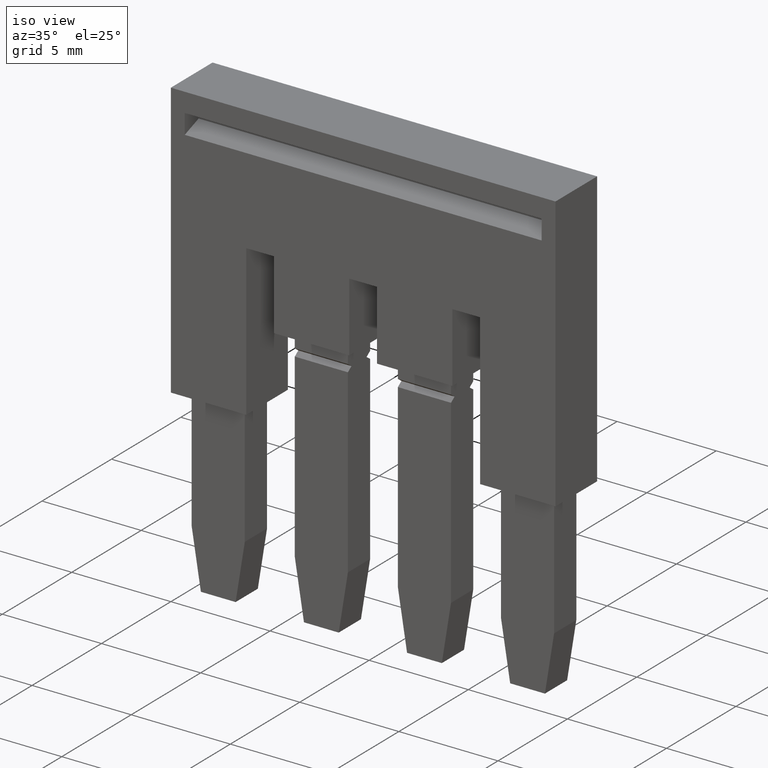
[diagram: clean part render]
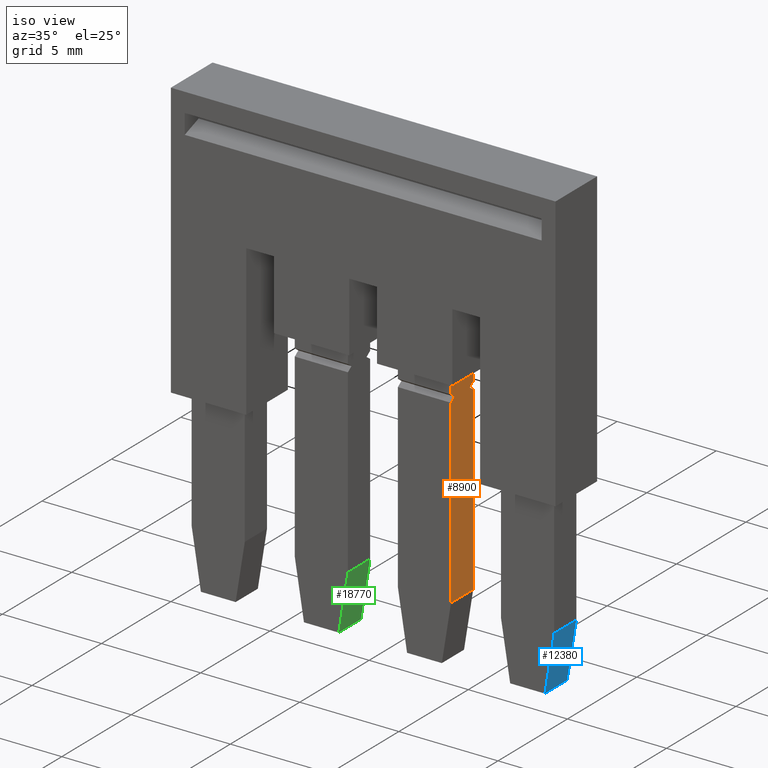
[diagram: same view with three faces highlighted in distinct colors, each labeled with its STEP entity id]
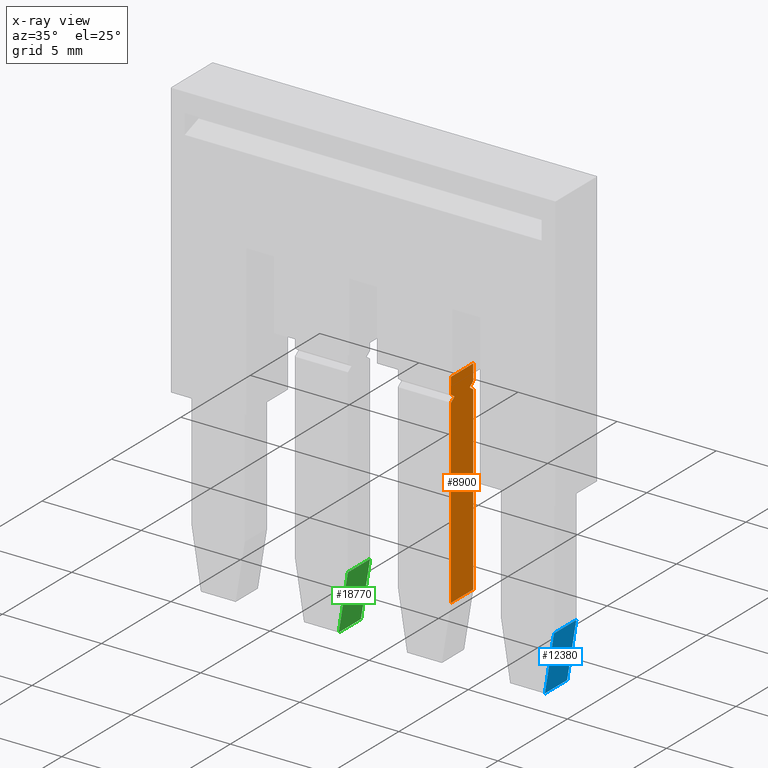
[diagram: x-ray of the same camera — body ghosted, the three highlighted faces saturated]
A machine part, iso view with three faces highlighted in distinct colors.
The next image is the same camera in x-ray (body ghosted, the three faces saturated) — at least one of them is partly hidden behind the body in this view.
Their STEP definitions:

[orange] entity #8900 — the highlighted planar face has unit normal (-1, 0, 0).
#6450=CARTESIAN_POINT('',(3.30716722169511,-19.6750000000004,
44.7199999990359));
#6460=VERTEX_POINT('',#6450);
#6490=CARTESIAN_POINT('',(8.21433444339023,-19.6750000000004,
44.7199999990359));
#6500=DIRECTION('',(-1.,0.,-1.22464679914735E-16));
#6510=VECTOR('',#6500,1.);
#6520=LINE('',#6490,#6510);
#6530=CARTESIAN_POINT('',(4.90716722169511,-19.6750000000004,
44.7199999990359));
#6540=VERTEX_POINT('',#6530);
#6550=EDGE_CURVE('',#6540,#6460,#6520,.T.);
#6780=CARTESIAN_POINT('',(4.90716722169511,-13.005123999997,
44.7199999990359));
#6790=DIRECTION('',(-2.91340061792681E-32,-1.,2.3789721411555E-16));
#6800=VECTOR('',#6790,1.);
#6810=LINE('',#6780,#6800);
#6820=CARTESIAN_POINT('',(4.90716722169512,-20.4889294607068,
44.7199999990359));
#6830=VERTEX_POINT('',#6820);
#6840=EDGE_CURVE('',#6540,#6830,#6810,.T.);
#7910=CARTESIAN_POINT('',(3.30716722169511,-20.8610705438267,
44.7199999990359));
#7920=VERTEX_POINT('',#7910);
#8160=CARTESIAN_POINT('',(3.30716722169511,-29.9807420624721,
44.7199999990359));
#8170=VERTEX_POINT('',#8160);
#8200=CARTESIAN_POINT('',(3.30716722169511,-13.005123999997,
44.7199999990359));
#8210=DIRECTION('',(-2.91340061792681E-32,-1.,2.3789721411555E-16));
#8220=VECTOR('',#8210,1.);
#8230=LINE('',#8200,#8220);
#8240=EDGE_CURVE('',#7920,#8170,#8230,.T.);
#8360=CARTESIAN_POINT('',(3.30716722169511,-29.9807420624721,
44.7199999990359));
#8370=DIRECTION('',(-1.22464679914735E-16,2.3789721411555E-16,1.));
#8380=DIRECTION('',(-2.91340061792681E-32,-1.,2.3789721411555E-16));
#8390=AXIS2_PLACEMENT_3D('',#8360,#8370,#8380);
#8400=PLANE('',#8390);
#8410=CARTESIAN_POINT('',(3.30716722169511,-20.4889294607468,
44.7199999990359));
#8420=VERTEX_POINT('',#8410);
#8430=EDGE_CURVE('',#6460,#8420,#8230,.T.);
#8440=ORIENTED_EDGE('',*,*,#8430,.F.);
#8450=CARTESIAN_POINT('',(0.,-18.08613182696,44.7199999990359));
#8460=DIRECTION('',(0.809016994374951,-0.587785252292469,
2.22044604925031E-16));
#8470=VECTOR('',#8460,1.);
#8480=LINE('',#8450,#8470);
#8490=CARTESIAN_POINT('',(3.56327135100298,-20.6750000022868,
44.7199999990359));
#8500=VERTEX_POINT('',#8490);
#8510=EDGE_CURVE('',#8420,#8500,#8480,.T.);
#8520=ORIENTED_EDGE('',*,*,#8510,.F.);
#8530=CARTESIAN_POINT('',(0.,-23.2638681776136,44.7199999990359));
#8540=DIRECTION('',(-0.809016994374948,-0.587785252292472,
2.77555756156289E-17));
#8550=VECTOR('',#8540,1.);
#8560=LINE('',#8530,#8550);
#8570=EDGE_CURVE('',#8500,#7920,#8560,.T.);
#8580=ORIENTED_EDGE('',*,*,#8570,.F.);
#8590=ORIENTED_EDGE('',*,*,#8240,.F.);
#8600=CARTESIAN_POINT('',(3.30716722169511,-29.9807420624721,
44.7199999990359));
#8610=DIRECTION('',(1.,0.,1.22464679914735E-16));
#8620=VECTOR('',#8610,1.);
#8630=LINE('',#8600,#8620);
#8640=CARTESIAN_POINT('',(4.90716722169511,-29.9807420624721,
44.7199999990359));
#8650=VERTEX_POINT('',#8640);
#8660=EDGE_CURVE('',#8170,#8650,#8630,.T.);
#8670=ORIENTED_EDGE('',*,*,#8660,.F.);
#8680=CARTESIAN_POINT('',(4.90716722169512,-20.8610705438433,
44.7199999990359));
#8690=VERTEX_POINT('',#8680);
#8700=EDGE_CURVE('',#8690,#8650,#6810,.T.);
#8710=ORIENTED_EDGE('',*,*,#8700,.T.);
#8720=CARTESIAN_POINT('',(0.,-17.2958048652479,44.7199999990359));
#8730=DIRECTION('',(-0.809016994374948,0.587785252292472,
-2.22044604925031E-16));
#8740=VECTOR('',#8730,1.);
#8750=LINE('',#8720,#8740);
#8760=CARTESIAN_POINT('',(4.65106309234833,-20.6750000022751,
44.7199999990359));
#8770=VERTEX_POINT('',#8760);
#8780=EDGE_CURVE('',#8690,#8770,#8750,.T.);
#8790=ORIENTED_EDGE('',*,*,#8780,.F.);
#8800=CARTESIAN_POINT('',(0.,-24.0541951393022,44.7199999990359));
#8810=DIRECTION('',(0.809016994374947,0.587785252292474,
-2.77555756156289E-17));
#8820=VECTOR('',#8810,1.);
#8830=LINE('',#8800,#8820);
#8840=EDGE_CURVE('',#8770,#6830,#8830,.T.);
#8850=ORIENTED_EDGE('',*,*,#8840,.F.);
#8860=ORIENTED_EDGE('',*,*,#6840,.T.);
#8870=ORIENTED_EDGE('',*,*,#6550,.F.);
#8880=EDGE_LOOP('',(#8870,#8860,#8850,#8790,#8710,#8670,#8590,#8580,
#8520,#8440));
#8890=FACE_OUTER_BOUND('',#8880,.T.);
#8900=ADVANCED_FACE('',(#8890),#8400,.F.);

[blue] entity #12380 — the highlighted planar face has unit normal (-0.9872, 0, 0.1594).
#10920=CARTESIAN_POINT('',(3.30716722169511,-32.8500000022937,
39.9831890500317));
#10930=VERTEX_POINT('',#10920);
#10960=CARTESIAN_POINT('',(3.30716722169511,-13.005123999997,
36.7795979210987));
#10970=DIRECTION('',(1.95170029616573E-17,0.987219178105449,
-0.159368423411924));
#10980=VECTOR('',#10970,1.);
#10990=LINE('',#10960,#10980);
#11000=CARTESIAN_POINT('',(3.30716722169511,-29.9807420624721,
39.5199999990359));
#11010=VERTEX_POINT('',#11000);
#11020=EDGE_CURVE('',#10930,#11010,#10990,.T.);
#11600=CARTESIAN_POINT('',(4.90716722169511,-29.9807420624721,
39.5199999990359));
#11610=VERTEX_POINT('',#11600);
#11640=CARTESIAN_POINT('',(4.90716722169511,-13.005123999997,
36.7795979210987));
#11650=DIRECTION('',(1.95170029616573E-17,0.987219178105449,
-0.159368423411924));
#11660=VECTOR('',#11650,1.);
#11670=LINE('',#11640,#11660);
#11680=CARTESIAN_POINT('',(4.90716722169511,-32.8500000022937,
39.9831890500317));
#11690=VERTEX_POINT('',#11680);
#11700=EDGE_CURVE('',#11690,#11610,#11670,.T.);
#12040=CARTESIAN_POINT('',(3.30716722169511,-29.9807420624721,
39.5199999990359));
#12050=DIRECTION('',(1.,0.,1.22464679914735E-16));
#12060=VECTOR('',#12050,1.);
#12070=LINE('',#12040,#12060);
#12080=EDGE_CURVE('',#11010,#11610,#12070,.T.);
#12220=CARTESIAN_POINT('',(3.30716722169511,-32.8500000022937,
39.9831890500317));
#12230=DIRECTION('',(-1.20899480652372E-16,0.159368423411924,
0.987219178105449));
#12240=DIRECTION('',(-1.95170029616573E-17,-0.987219178105449,
0.159368423411924));
#12250=AXIS2_PLACEMENT_3D('',#12220,#12230,#12240);
#12260=PLANE('',#12250);
#12270=ORIENTED_EDGE('',*,*,#11020,.T.);
#12280=CARTESIAN_POINT('',(3.30716722169511,-32.8500000022937,
39.9831890500317));
#12290=DIRECTION('',(1.,0.,1.22464679914735E-16));
#12300=VECTOR('',#12290,1.);
#12310=LINE('',#12280,#12300);
#12320=EDGE_CURVE('',#10930,#11690,#12310,.T.);
#12330=ORIENTED_EDGE('',*,*,#12320,.F.);
#12340=ORIENTED_EDGE('',*,*,#11700,.F.);
#12350=ORIENTED_EDGE('',*,*,#12080,.T.);
#12360=EDGE_LOOP('',(#12350,#12340,#12330,#12270));
#12370=FACE_OUTER_BOUND('',#12360,.T.);
#12380=ADVANCED_FACE('',(#12370),#12260,.F.);

[green] entity #18770 — the highlighted planar face has unit normal (-0.9872, 0, 0.1594).
#17110=CARTESIAN_POINT('',(3.30716722169511,-29.9807420624721,
49.9199999990359));
#17120=VERTEX_POINT('',#17110);
#17340=CARTESIAN_POINT('',(3.30716722169511,-32.8500000022929,
50.3831890500316));
#17350=VERTEX_POINT('',#17340);
#17380=CARTESIAN_POINT('',(3.30716722169511,-13.005123999997,
47.1795979210987));
#17390=DIRECTION('',(-1.95170029616573E-17,-0.987219178105449,
0.159368423411924));
#17400=VECTOR('',#17390,1.);
#17410=LINE('',#17380,#17400);
#17420=EDGE_CURVE('',#17120,#17350,#17410,.T.);
#17780=CARTESIAN_POINT('',(8.21433444339023,-29.9807420624721,
49.9199999990359));
#17790=DIRECTION('',(1.,-7.00916369648307E-32,1.22464679914735E-16));
#17800=VECTOR('',#17790,1.);
#17810=LINE('',#17780,#17800);
#17820=CARTESIAN_POINT('',(4.90716722169511,-29.9807420624721,
49.9199999990359));
#17830=VERTEX_POINT('',#17820);
#17840=EDGE_CURVE('',#17120,#17830,#17810,.T.);
#18410=CARTESIAN_POINT('',(4.90716722169511,-32.8500000022929,
50.3831890500316));
#18420=VERTEX_POINT('',#18410);
#18450=CARTESIAN_POINT('',(8.21433444339023,-32.8500000022929,
50.3831890500316));
#18460=DIRECTION('',(1.,0.,1.22464679914735E-16));
#18470=VECTOR('',#18460,1.);
#18480=LINE('',#18450,#18470);
#18490=EDGE_CURVE('',#17350,#18420,#18480,.T.);
#18610=CARTESIAN_POINT('',(3.30716722169511,-32.8500000022929,
50.3831890500316));
#18620=DIRECTION('',(-1.20899480652372E-16,0.159368423411924,
0.987219178105449));
#18630=DIRECTION('',(-1.95170029616573E-17,-0.987219178105449,
0.159368423411924));
#18640=AXIS2_PLACEMENT_3D('',#18610,#18620,#18630);
#18650=PLANE('',#18640);
#18660=ORIENTED_EDGE('',*,*,#17420,.F.);
#18670=ORIENTED_EDGE('',*,*,#18490,.F.);
#18680=CARTESIAN_POINT('',(4.90716722169511,-1.00000000000004,
45.241590913966));
#18690=DIRECTION('',(-2.77555756156289E-17,-0.987219178105449,
0.159368423411924));
#18700=VECTOR('',#18690,1.);
#18710=LINE('',#18680,#18700);
#18720=EDGE_CURVE('',#17830,#18420,#18710,.T.);
#18730=ORIENTED_EDGE('',*,*,#18720,.T.);
#18740=ORIENTED_EDGE('',*,*,#17840,.T.);
#18750=EDGE_LOOP('',(#18740,#18730,#18670,#18660));
#18760=FACE_OUTER_BOUND('',#18750,.T.);
#18770=ADVANCED_FACE('',(#18760),#18650,.F.);